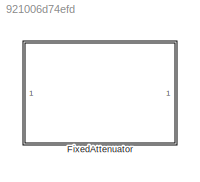
MODEL slx_921006d74efd
KIND library
CONFIG AbsTol = auto
CONFIG EnableMultiTasking = off
CONFIG FixedStep = auto
CONFIG MaxStep = auto
CONFIG MinStep = auto
CONFIG RelTol = 1e-3
CONFIG SampleTimeConstraint = Unconstrained
CONFIG SolverName = VariableStepAuto
CONFIG StartTime = 0.0
CONFIG StopTime = 10.0
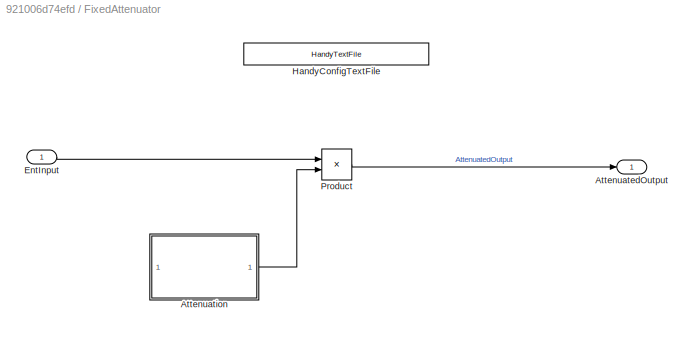
BLOCK [SubSystem] FixedAttenuator
BLOCK [Outport] FixedAttenuator/AttenuatedOutput
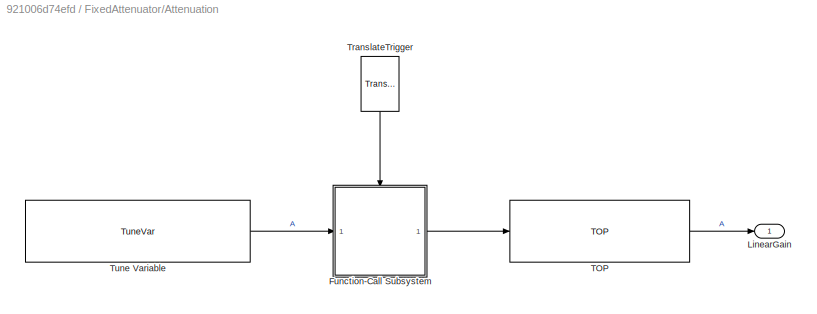
BLOCK [SubSystem] FixedAttenuator/Attenuation 
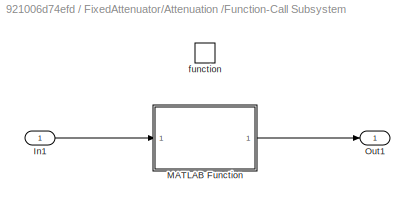
BLOCK [SubSystem] FixedAttenuator/Attenuation /Function-Call Subsystem
  TreatAsAtomicUnit = on
BLOCK [Inport] FixedAttenuator/Attenuation /Function-Call Subsystem/In1
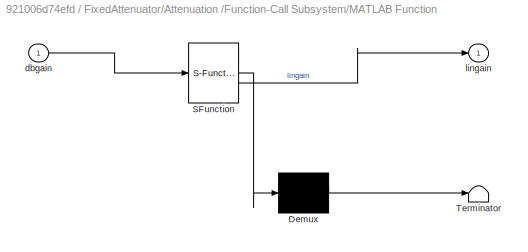
BLOCK [SubSystem] FixedAttenuator/Attenuation /Function-Call Subsystem/MATLAB Function
  ErrorFcn = Stateflow.Translate.translate
  PermitHierarchicalResolution = ExplicitOnly
  SFBlockType = MATLAB Function
  TreatAsAtomicUnit = on
BLOCK [Demux] FixedAttenuator/Attenuation /Function-Call Subsystem/MATLAB Function/ Demux 
  Outputs = 1
BLOCK [S-Function] FixedAttenuator/Attenuation /Function-Call Subsystem/MATLAB Function/ SFunction 
  EnableBusSupport = off
  FunctionName = sf_sfun
  PortCounts = [1 2]
  SFcnIsStateOwnerBlock = off
  SFunctionDeploymentMode = off
  Tag = Stateflow S-Function 2
BLOCK [Terminator] FixedAttenuator/Attenuation /Function-Call Subsystem/MATLAB Function/ Terminator 
BLOCK [Inport] FixedAttenuator/Attenuation /Function-Call Subsystem/MATLAB Function/dbgain
BLOCK [Outport] FixedAttenuator/Attenuation /Function-Call Subsystem/MATLAB Function/lingain
BLOCK [Outport] FixedAttenuator/Attenuation /Function-Call Subsystem/Out1
BLOCK [TriggerPort] FixedAttenuator/Attenuation /Function-Call Subsystem/function
  StatesWhenEnabling = held
  TriggerType = function-call
  VariantControl = Variant
BLOCK [Outport] FixedAttenuator/Attenuation /LinearGain
BLOCK [Reference] FixedAttenuator/Attenuation /TOP  REF=TOP/TOP
  SourceBlock = TOP/TOP
  SourceProductName = Bose Talaria
  SourceType = Talaria Target Overlay Parameter
BLOCK [Reference] FixedAttenuator/Attenuation /TranslateTrigger  REF=TuneVar/TranslateTrigger
  NameLocation = left
  SourceBlock = TuneVar/TranslateTrigger
  SourceProductName = Bose Talaria
  SourceType = Talaria Translate Trigger
BLOCK [Reference] FixedAttenuator/Attenuation /Tune Variable  REF=TuneVar/TuneVar
  SourceBlock = TuneVar/TuneVar
  SourceProductName = Bose Talaria
  SourceType = Talaria Tune Variable
BLOCK [Inport] FixedAttenuator/EntInput
BLOCK [Reference] FixedAttenuator/HandyConfigTextFile  REF=HandyTextFile/HandyTextFile
  SourceBlock = HandyTextFile/HandyTextFile
  SourceProductName = Bose Talaria
  SourceType = Talaria Handy Text File
BLOCK [Product] FixedAttenuator/Product
LINE FixedAttenuator/Attenuation /Function-Call Subsystem/In1:1 -> FixedAttenuator/Attenuation /Function-Call Subsystem/MATLAB Function:1
LINE FixedAttenuator/Attenuation /Function-Call Subsystem/MATLAB Function:1 -> FixedAttenuator/Attenuation /Function-Call Subsystem/Out1:1
LINE FixedAttenuator/Attenuation /Function-Call Subsystem:1 -> FixedAttenuator/Attenuation /TOP:1
LINE FixedAttenuator/Attenuation /TOP:1 -> FixedAttenuator/Attenuation /LinearGain:1
LINE FixedAttenuator/Attenuation /TranslateTrigger:1 -> FixedAttenuator/Attenuation /Function-Call Subsystem:trigger
LINE FixedAttenuator/Attenuation /Tune Variable:1 -> FixedAttenuator/Attenuation /Function-Call Subsystem:1
LINE FixedAttenuator/Attenuation :1 -> FixedAttenuator/Product:2
LINE FixedAttenuator/EntInput:1 -> FixedAttenuator/Product:1
LINE FixedAttenuator/Product:1 -> FixedAttenuator/AttenuatedOutput:1
CHART FixedAttenuator/Attenuation /Function-Call
Subsystem/MATLAB Function states=1 transitions=1
  STATE_LABEL 'eML_blk_kernel()'
  STATE_LABEL 'SCRIPT:\nfunction lingain = fcn(dbgain)\n    lingain = 10^(dbgain.Value/20);   \nend\n'
CHART  states=0 transitions=0
